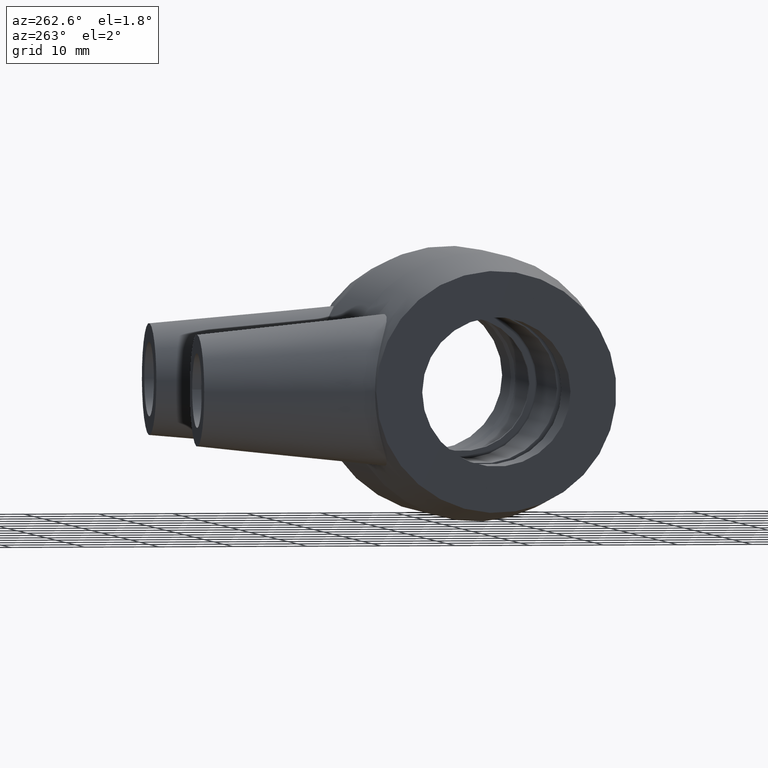
[diagram: clean part render]
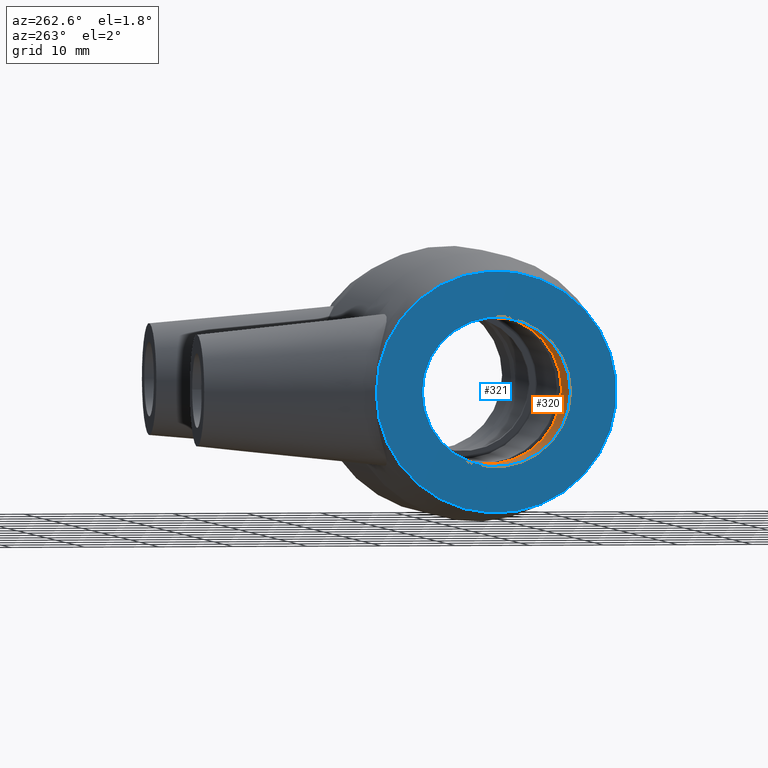
[diagram: same view with the hole feature highlighted: cylindrical wall and planar end face, labeled with their STEP entity ids]
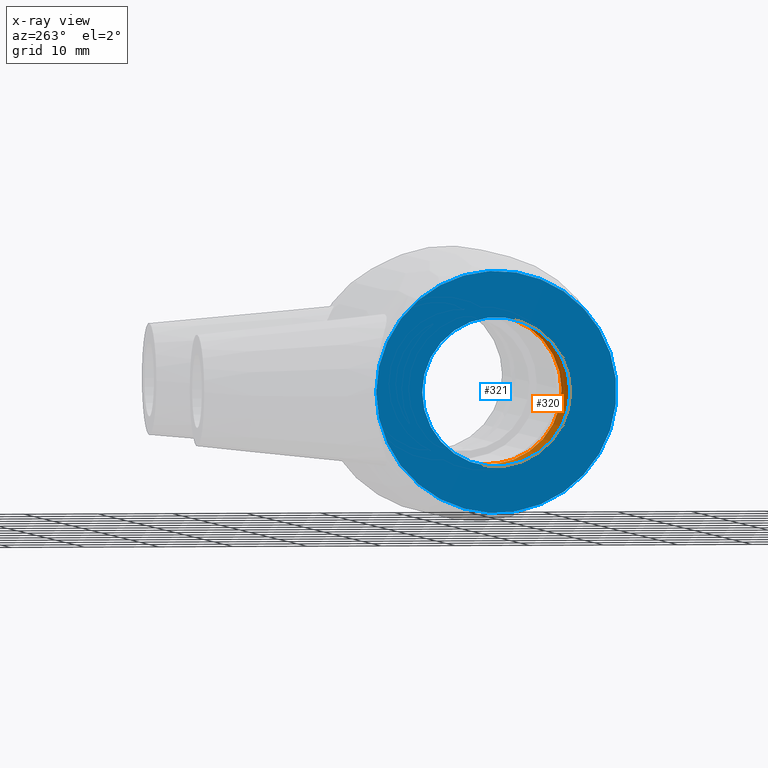
[diagram: x-ray of the same camera — body ghosted, the hole faces saturated]
A machine part, auxiliary view. The highlighted faces form one hole feature of diameter 20 mm: the cylindrical wall (entity #320, orange) and its adjacent planar end face (entity #321, blue) — they share a circular edge in the B-rep.
The next image is the same camera in x-ray (body ghosted, the hole faces saturated) — the bore reads through the body.
Wall:
#47=FACE_BOUND('',#139,.T.);
#60=CYLINDRICAL_SURFACE('',#374,10.);
#86=FACE_OUTER_BOUND('',#138,.T.);
#138=EDGE_LOOP('',(#276));
#139=EDGE_LOOP('',(#277));
#168=CIRCLE('',#373,10.);
#169=CIRCLE('',#375,10.);
#196=VERTEX_POINT('',#639);
#197=VERTEX_POINT('',#642);
#224=EDGE_CURVE('',#196,#196,#168,.T.);
#225=EDGE_CURVE('',#197,#197,#169,.T.);
#276=ORIENTED_EDGE('',*,*,#225,.F.);
#277=ORIENTED_EDGE('',*,*,#224,.T.);
#320=ADVANCED_FACE('',(#86,#47),#60,.F.);
#373=AXIS2_PLACEMENT_3D('',#640,#477,#478);
#374=AXIS2_PLACEMENT_3D('',#641,#479,#480);
#375=AXIS2_PLACEMENT_3D('',#643,#481,#482);
#477=DIRECTION('center_axis',(1.,1.83697019872103E-16,0.));
#478=DIRECTION('ref_axis',(0.,0.,-1.));
#479=DIRECTION('center_axis',(1.,1.83697019872103E-16,0.));
#480=DIRECTION('ref_axis',(-1.96131485542617E-16,1.,0.));
#481=DIRECTION('center_axis',(1.,1.83697019872103E-16,0.));
#482=DIRECTION('ref_axis',(0.,0.,-1.));
#639=CARTESIAN_POINT('',(-26.1666666666667,10.,0.));
#640=CARTESIAN_POINT('Origin',(-26.1666666666667,1.71450551880629E-15,0.));
#641=CARTESIAN_POINT('Origin',(-30.8333333333333,8.57252759403147E-16,0.));
#642=CARTESIAN_POINT('',(-35.5,10.,0.));
#643=CARTESIAN_POINT('Origin',(-35.5,0.,0.));
End face:
#48=FACE_BOUND('',#141,.T.);
#87=FACE_OUTER_BOUND('',#140,.T.);
#140=EDGE_LOOP('',(#278));
#141=EDGE_LOOP('',(#279));
#169=CIRCLE('',#375,10.);
#170=CIRCLE('',#377,16.2);
#197=VERTEX_POINT('',#642);
#198=VERTEX_POINT('',#645);
#225=EDGE_CURVE('',#197,#197,#169,.T.);
#226=EDGE_CURVE('',#198,#198,#170,.T.);
#278=ORIENTED_EDGE('',*,*,#226,.F.);
#279=ORIENTED_EDGE('',*,*,#225,.T.);
#294=PLANE('',#376);
#321=ADVANCED_FACE('',(#87,#48),#294,.T.);
#375=AXIS2_PLACEMENT_3D('',#643,#481,#482);
#376=AXIS2_PLACEMENT_3D('',#644,#483,#484);
#377=AXIS2_PLACEMENT_3D('',#646,#485,#486);
#481=DIRECTION('center_axis',(1.,1.83697019872103E-16,0.));
#482=DIRECTION('ref_axis',(0.,0.,-1.));
#483=DIRECTION('center_axis',(-1.,-1.83697019872103E-16,0.));
#484=DIRECTION('ref_axis',(0.,0.,1.));
#485=DIRECTION('center_axis',(1.,1.83697019872103E-16,0.));
#486=DIRECTION('ref_axis',(0.,0.,-1.));
#642=CARTESIAN_POINT('',(-35.5,10.,0.));
#643=CARTESIAN_POINT('Origin',(-35.5,0.,0.));
#644=CARTESIAN_POINT('Origin',(-35.5,16.2,0.));
#645=CARTESIAN_POINT('',(-35.5,16.2,0.));
#646=CARTESIAN_POINT('Origin',(-35.5,2.46519032881566E-31,0.));